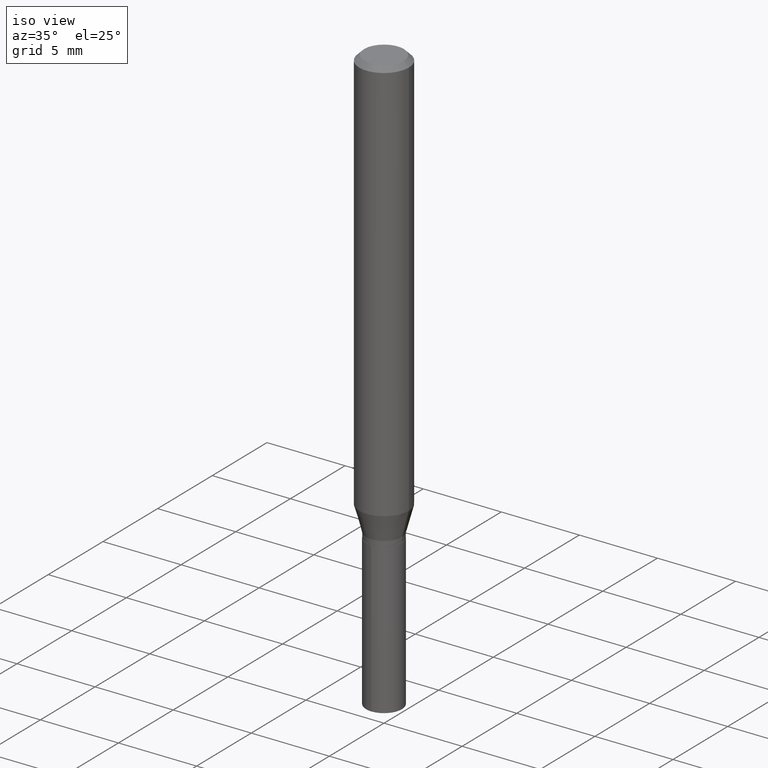
[diagram: clean part render]
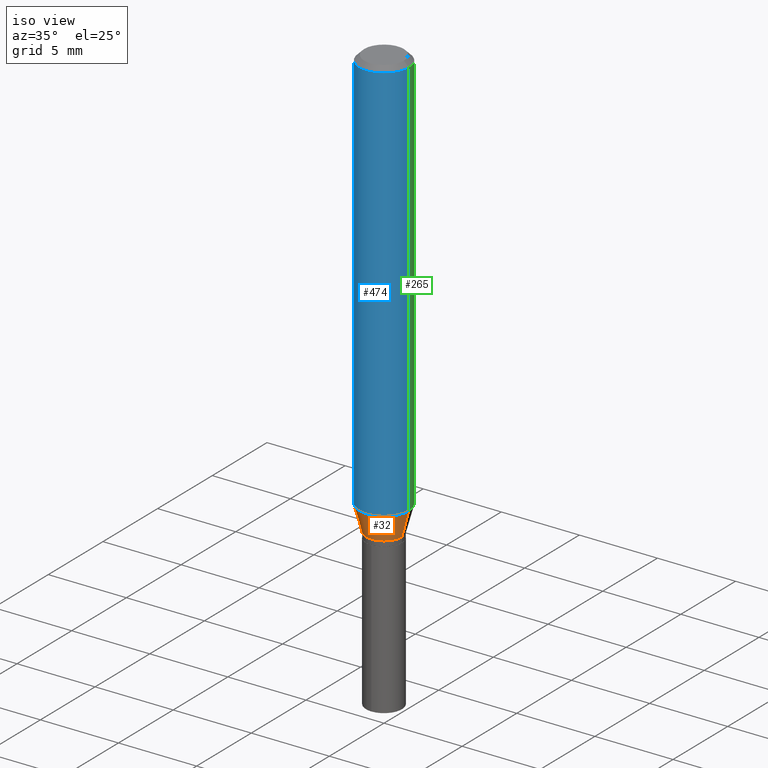
[diagram: same view with three faces highlighted in distinct colors, each labeled with its STEP entity id]
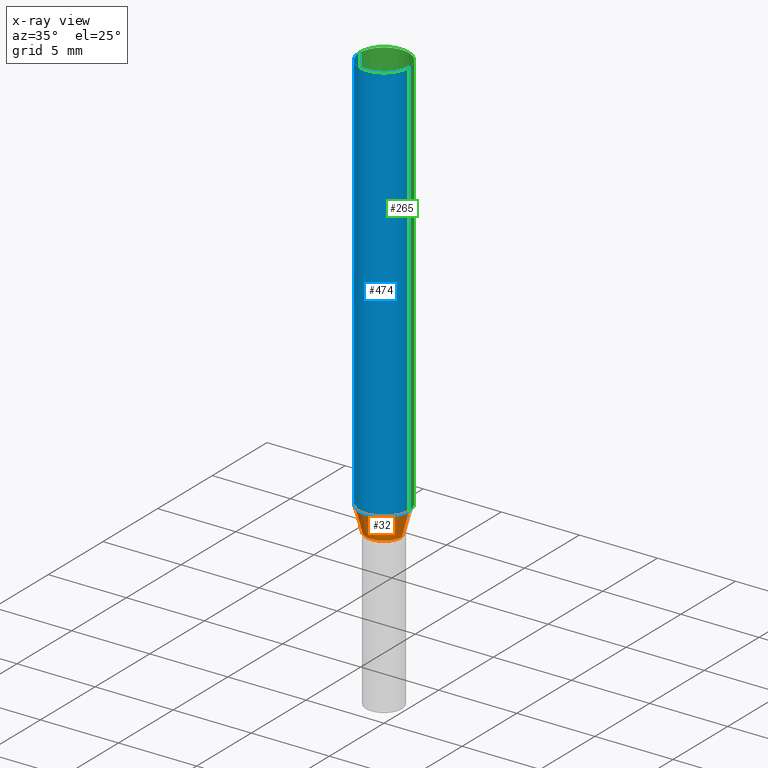
[diagram: x-ray of the same camera — body ghosted, the three highlighted faces saturated]
A machine part, iso view with three faces highlighted in distinct colors.
The next image is the same camera in x-ray (body ghosted, the three faces saturated) — at least one of them is partly hidden behind the body in this view.
Their STEP definitions:

[orange] entity #32 — the highlighted conical surface has half-angle 15 deg.
#3 = ORIENTED_EDGE ( 'NONE', *, *, #490, .T. ) ;
#12 = VERTEX_POINT ( 'NONE', #137 ) ;
#14 = DIRECTION ( 'NONE',  ( 1.000000000000000000, -6.982962677686271444E-15, 0.000000000000000000 ) ) ;
#21 = AXIS2_PLACEMENT_3D ( 'NONE', #364, #103, #403 ) ;
#32 = ADVANCED_FACE ( 'NONE', ( #136 ), #357, .T. ) ;
#53 = EDGE_LOOP ( 'NONE', ( #129, #3, #126, #385 ) ) ;
#65 = CARTESIAN_POINT ( 'NONE',  ( 2.656757311039532670E-29, -3.793145326519194416E-15, -1.086400000000000254 ) ) ;
#78 = AXIS2_PLACEMENT_3D ( 'NONE', #435, #296, #458 ) ;
#80 = CARTESIAN_POINT ( 'NONE',  ( 0.04529999999999999999, -4.109473535818381906E-15, -1.086400000000000254 ) ) ;
#81 = EDGE_CURVE ( 'NONE', #448, #272, #477, .T. ) ;
#95 = DIRECTION ( 'NONE',  ( 0.2588190451025211281, 1.565188264969622954E-15, 0.9659258262890679791 ) ) ;
#103 = DIRECTION ( 'NONE',  ( -2.445468806185136597E-29, 3.491481338843145583E-15, 1.000000000000000000 ) ) ;
#126 = ORIENTED_EDGE ( 'NONE', *, *, #81, .T. ) ;
#129 = ORIENTED_EDGE ( 'NONE', *, *, #164, .F. ) ;
#136 = FACE_OUTER_BOUND ( 'NONE', #53, .T. ) ;
#137 = CARTESIAN_POINT ( 'NONE',  ( -0.06250000000000012490, -3.124933481764980273E-15, -1.022208726109815169 ) ) ;
#140 = CARTESIAN_POINT ( 'NONE',  ( 0.06250000000000012490, -4.005457858970436136E-15, -1.022208726109815169 ) ) ;
#160 = VECTOR ( 'NONE', #95, 39.37007874015748854 ) ;
#164 = EDGE_CURVE ( 'NONE', #338, #12, #479, .T. ) ;
#168 = CARTESIAN_POINT ( 'NONE',  ( -0.04529999999999999999, -3.471269467219868588E-15, -1.086400000000000254 ) ) ;
#238 = EDGE_CURVE ( 'NONE', #12, #272, #262, .T. ) ;
#249 = CARTESIAN_POINT ( 'NONE',  ( -0.04529999999999999999, -3.494138669989291073E-15, -1.086400000000000254 ) ) ;
#258 = VECTOR ( 'NONE', #280, 39.37007874015748854 ) ;
#262 = CIRCLE ( 'NONE', #21, 0.06250000000000012490 ) ;
#272 = VERTEX_POINT ( 'NONE', #140 ) ;
#278 = AXIS2_PLACEMENT_3D ( 'NONE', #65, #475, #14 ) ;
#280 = DIRECTION ( 'NONE',  ( -0.2588190451025211281, 5.211531920934547886E-15, 0.9659258262890679791 ) ) ;
#287 = CIRCLE ( 'NONE', #78, 0.04529999999999999999 ) ;
#296 = DIRECTION ( 'NONE',  ( -2.445468806185136597E-29, 3.491481338843145583E-15, 1.000000000000000000 ) ) ;
#338 = VERTEX_POINT ( 'NONE', #249 ) ;
#357 = CONICAL_SURFACE ( 'NONE', #278, 0.04529999999999999999, 0.2617993877991498519 ) ;
#364 = CARTESIAN_POINT ( 'NONE',  ( 2.499779553111798848E-29, -3.569022691615043678E-15, -1.022208726109815169 ) ) ;
#385 = ORIENTED_EDGE ( 'NONE', *, *, #238, .F. ) ;
#403 = DIRECTION ( 'NONE',  ( 1.000000000000000000, -6.982962677686264344E-15, 0.000000000000000000 ) ) ;
#433 = CARTESIAN_POINT ( 'NONE',  ( 0.04529999999999999999, -4.109473535818381906E-15, -1.086400000000000254 ) ) ;
#435 = CARTESIAN_POINT ( 'NONE',  ( 2.656757311039532670E-29, -3.793145326519194416E-15, -1.086400000000000254 ) ) ;
#448 = VERTEX_POINT ( 'NONE', #80 ) ;
#458 = DIRECTION ( 'NONE',  ( 1.000000000000000000, -6.982962677686271444E-15, 0.000000000000000000 ) ) ;
#475 = DIRECTION ( 'NONE',  ( -2.445468806185136597E-29, 3.491481338843145583E-15, 1.000000000000000000 ) ) ;
#477 = LINE ( 'NONE', #433, #160 ) ;
#479 = LINE ( 'NONE', #168, #258 ) ;
#490 = EDGE_CURVE ( 'NONE', #338, #448, #287, .T. ) ;

[blue] entity #474 — the highlighted cylindrical surface (edge-blend (fillet) strip) has radius 1.5875 mm, axis along (-0, 0, 1).
#12 = VERTEX_POINT ( 'NONE', #137 ) ;
#19 = AXIS2_PLACEMENT_3D ( 'NONE', #432, #420, #310 ) ;
#21 = AXIS2_PLACEMENT_3D ( 'NONE', #364, #103, #403 ) ;
#23 = DIRECTION ( 'NONE',  ( -2.445468806185136877E-29, 3.491481338843145188E-15, 1.000000000000000000 ) ) ;
#35 = VERTEX_POINT ( 'NONE', #170 ) ;
#46 = ORIENTED_EDGE ( 'NONE', *, *, #148, .T. ) ;
#49 = FACE_OUTER_BOUND ( 'NONE', #250, .T. ) ;
#77 = ORIENTED_EDGE ( 'NONE', *, *, #238, .T. ) ;
#103 = DIRECTION ( 'NONE',  ( -2.445468806185136597E-29, 3.491481338843145583E-15, 1.000000000000000000 ) ) ;
#106 = LINE ( 'NONE', #256, #270 ) ;
#137 = CARTESIAN_POINT ( 'NONE',  ( -0.06250000000000012490, -3.124933481764980273E-15, -1.022208726109815169 ) ) ;
#140 = CARTESIAN_POINT ( 'NONE',  ( 0.06250000000000012490, -4.005457858970436136E-15, -1.022208726109815169 ) ) ;
#148 = EDGE_CURVE ( 'NONE', #272, #303, #204, .T. ) ;
#162 = CYLINDRICAL_SURFACE ( 'NONE', #19, 0.06250000000000006939 ) ;
#170 = CARTESIAN_POINT ( 'NONE',  ( -0.06250000000000001388, -1.362243894325228017E-15, -0.01250000000000008916 ) ) ;
#173 = AXIS2_PLACEMENT_3D ( 'NONE', #194, #225, #313 ) ;
#189 = CIRCLE ( 'NONE', #173, 0.06250000000000001388 ) ;
#194 = CARTESIAN_POINT ( 'NONE',  ( 3.056836007731442729E-31, -4.364351673553962300E-17, -0.01250000000000008916 ) ) ;
#204 = LINE ( 'NONE', #393, #341 ) ;
#205 = EDGE_CURVE ( 'NONE', #12, #35, #106, .T. ) ;
#225 = DIRECTION ( 'NONE',  ( -2.445468806185136597E-29, 3.491481338843145583E-15, 1.000000000000000000 ) ) ;
#238 = EDGE_CURVE ( 'NONE', #12, #272, #262, .T. ) ;
#250 = EDGE_LOOP ( 'NONE', ( #347, #77, #46, #404 ) ) ;
#256 = CARTESIAN_POINT ( 'NONE',  ( -0.06250000000000006939, 4.440892098500631092E-16, -3.074334431409319267E-30 ) ) ;
#262 = CIRCLE ( 'NONE', #21, 0.06250000000000012490 ) ;
#270 = VECTOR ( 'NONE', #293, 39.37007874015748143 ) ;
#272 = VERTEX_POINT ( 'NONE', #140 ) ;
#293 = DIRECTION ( 'NONE',  ( -2.445468806185136877E-29, 3.491481338843145188E-15, 1.000000000000000000 ) ) ;
#303 = VERTEX_POINT ( 'NONE', #486 ) ;
#310 = DIRECTION ( 'NONE',  ( 1.000000000000000000, -6.982962677686266711E-15, 4.876176775795935793E-29 ) ) ;
#313 = DIRECTION ( 'NONE',  ( 1.000000000000000000, -6.982962677686265922E-15, 0.000000000000000000 ) ) ;
#341 = VECTOR ( 'NONE', #23, 39.37007874015748143 ) ;
#347 = ORIENTED_EDGE ( 'NONE', *, *, #205, .F. ) ;
#364 = CARTESIAN_POINT ( 'NONE',  ( 2.499779553111798848E-29, -3.569022691615043678E-15, -1.022208726109815169 ) ) ;
#393 = CARTESIAN_POINT ( 'NONE',  ( 0.06250000000000006939, -4.364351673553921624E-16, 3.047610484872463374E-30 ) ) ;
#403 = DIRECTION ( 'NONE',  ( 1.000000000000000000, -6.982962677686264344E-15, 0.000000000000000000 ) ) ;
#404 = ORIENTED_EDGE ( 'NONE', *, *, #418, .F. ) ;
#418 = EDGE_CURVE ( 'NONE', #35, #303, #189, .T. ) ;
#420 = DIRECTION ( 'NONE',  ( -2.445468806185136597E-29, 3.491481338843145583E-15, 1.000000000000000000 ) ) ;
#432 = CARTESIAN_POINT ( 'NONE',  ( 0.000000000000000000, 0.000000000000000000, 0.000000000000000000 ) ) ;
#474 = ADVANCED_FACE ( 'NONE', ( #49 ), #162, .T. ) ;
#486 = CARTESIAN_POINT ( 'NONE',  ( 0.06250000000000001388, -4.800786840909313294E-16, -0.01250000000000008916 ) ) ;

[green] entity #265 — the highlighted cylindrical surface (edge-blend (fillet) strip) has radius 1.5875 mm, axis along (-0, 0, 1).
#8 = ORIENTED_EDGE ( 'NONE', *, *, #337, .F. ) ;
#12 = VERTEX_POINT ( 'NONE', #137 ) ;
#23 = DIRECTION ( 'NONE',  ( -2.445468806185136877E-29, 3.491481338843145188E-15, 1.000000000000000000 ) ) ;
#28 = CYLINDRICAL_SURFACE ( 'NONE', #245, 0.06250000000000006939 ) ;
#34 = DIRECTION ( 'NONE',  ( 1.000000000000000000, -6.982962677686266711E-15, 4.876176775795935793E-29 ) ) ;
#35 = VERTEX_POINT ( 'NONE', #170 ) ;
#79 = CIRCLE ( 'NONE', #212, 0.06250000000000001388 ) ;
#84 = EDGE_LOOP ( 'NONE', ( #233, #410, #8, #430 ) ) ;
#104 = DIRECTION ( 'NONE',  ( 1.000000000000000000, -6.982962677686265922E-15, 0.000000000000000000 ) ) ;
#106 = LINE ( 'NONE', #256, #270 ) ;
#137 = CARTESIAN_POINT ( 'NONE',  ( -0.06250000000000012490, -3.124933481764980273E-15, -1.022208726109815169 ) ) ;
#140 = CARTESIAN_POINT ( 'NONE',  ( 0.06250000000000012490, -4.005457858970436136E-15, -1.022208726109815169 ) ) ;
#148 = EDGE_CURVE ( 'NONE', #272, #303, #204, .T. ) ;
#170 = CARTESIAN_POINT ( 'NONE',  ( -0.06250000000000001388, -1.362243894325228017E-15, -0.01250000000000008916 ) ) ;
#184 = CARTESIAN_POINT ( 'NONE',  ( 2.499779553111798848E-29, -3.569022691615043678E-15, -1.022208726109815169 ) ) ;
#204 = LINE ( 'NONE', #393, #341 ) ;
#205 = EDGE_CURVE ( 'NONE', #12, #35, #106, .T. ) ;
#212 = AXIS2_PLACEMENT_3D ( 'NONE', #285, #443, #104 ) ;
#216 = FACE_OUTER_BOUND ( 'NONE', #84, .T. ) ;
#220 = CARTESIAN_POINT ( 'NONE',  ( 0.000000000000000000, 0.000000000000000000, 0.000000000000000000 ) ) ;
#230 = CIRCLE ( 'NONE', #346, 0.06250000000000012490 ) ;
#233 = ORIENTED_EDGE ( 'NONE', *, *, #398, .T. ) ;
#245 = AXIS2_PLACEMENT_3D ( 'NONE', #220, #368, #34 ) ;
#256 = CARTESIAN_POINT ( 'NONE',  ( -0.06250000000000006939, 4.440892098500631092E-16, -3.074334431409319267E-30 ) ) ;
#265 = ADVANCED_FACE ( 'NONE', ( #216 ), #28, .T. ) ;
#270 = VECTOR ( 'NONE', #293, 39.37007874015748143 ) ;
#272 = VERTEX_POINT ( 'NONE', #140 ) ;
#285 = CARTESIAN_POINT ( 'NONE',  ( 3.056836007731442729E-31, -4.364351673553962300E-17, -0.01250000000000008916 ) ) ;
#293 = DIRECTION ( 'NONE',  ( -2.445468806185136877E-29, 3.491481338843145188E-15, 1.000000000000000000 ) ) ;
#303 = VERTEX_POINT ( 'NONE', #486 ) ;
#337 = EDGE_CURVE ( 'NONE', #303, #35, #79, .T. ) ;
#341 = VECTOR ( 'NONE', #23, 39.37007874015748143 ) ;
#346 = AXIS2_PLACEMENT_3D ( 'NONE', #184, #471, #351 ) ;
#351 = DIRECTION ( 'NONE',  ( 1.000000000000000000, -6.982962677686264344E-15, 0.000000000000000000 ) ) ;
#368 = DIRECTION ( 'NONE',  ( -2.445468806185136597E-29, 3.491481338843145583E-15, 1.000000000000000000 ) ) ;
#393 = CARTESIAN_POINT ( 'NONE',  ( 0.06250000000000006939, -4.364351673553921624E-16, 3.047610484872463374E-30 ) ) ;
#398 = EDGE_CURVE ( 'NONE', #272, #12, #230, .T. ) ;
#410 = ORIENTED_EDGE ( 'NONE', *, *, #205, .T. ) ;
#430 = ORIENTED_EDGE ( 'NONE', *, *, #148, .F. ) ;
#443 = DIRECTION ( 'NONE',  ( -2.445468806185136597E-29, 3.491481338843145583E-15, 1.000000000000000000 ) ) ;
#471 = DIRECTION ( 'NONE',  ( -2.445468806185136597E-29, 3.491481338843145583E-15, 1.000000000000000000 ) ) ;
#486 = CARTESIAN_POINT ( 'NONE',  ( 0.06250000000000001388, -4.800786840909313294E-16, -0.01250000000000008916 ) ) ;